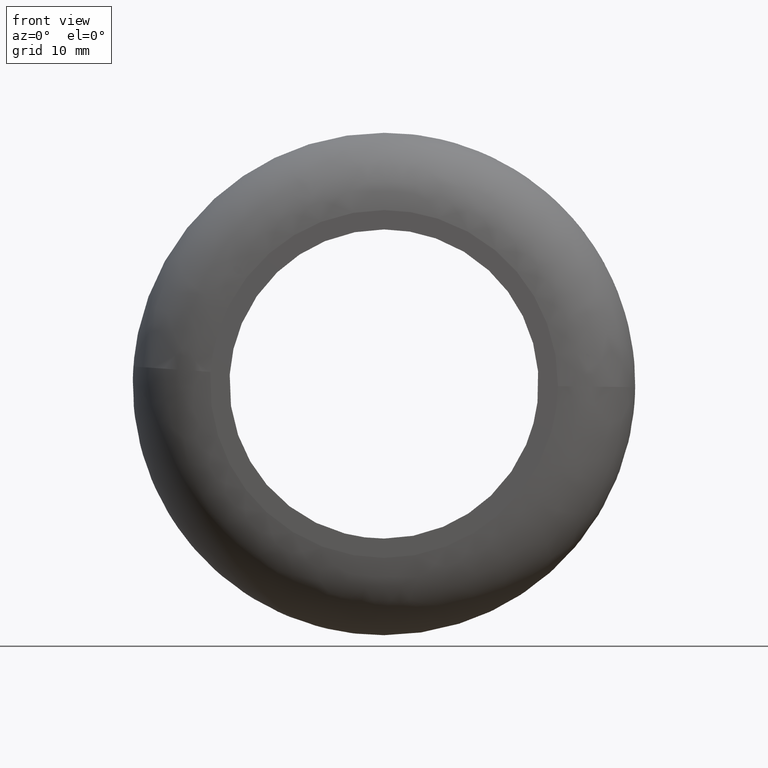
[diagram: clean part render]
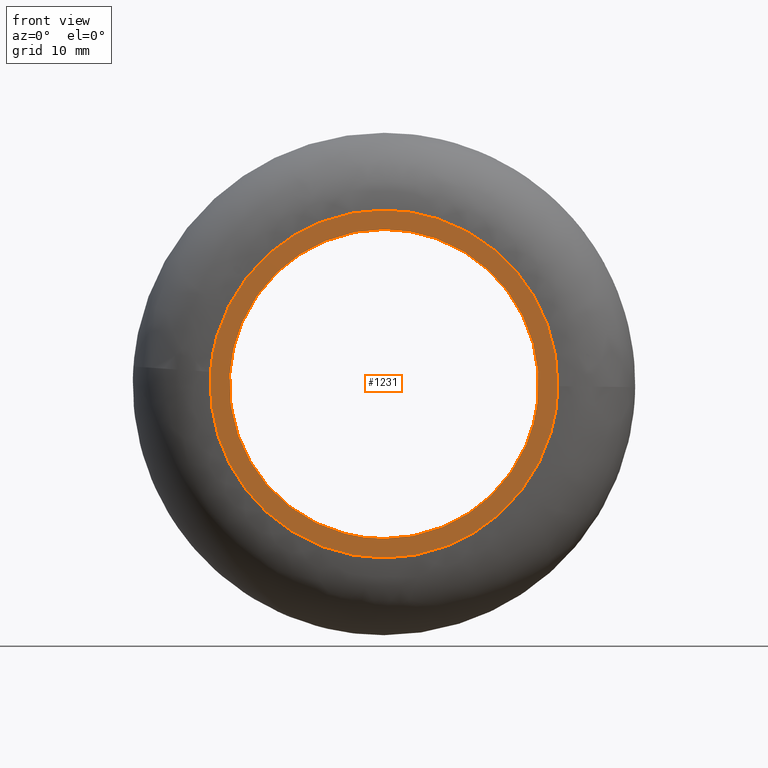
[diagram: same view with one face highlighted and labeled with its STEP entity id]
A machine part, front view. The second image highlights one B-rep face of the part: STEP entity #1231.
In plain terms, the highlighted face is a freeform B-spline surface patch.
Its self-contained STEP definition (entity closure, byte-faithful):
#703=CARTESIAN_POINT('',(15.888154860658560,-2.434933E-015,-1.888527236580032));
#704=VERTEX_POINT('',#703);
#710=CARTESIAN_POINT('',(0.0,-2.939055E-015,16.0));
#711=VERTEX_POINT('',#710);
#712=CARTESIAN_POINT('',(15.888154860658563,-2.434933E-015,-1.888527236580032));
#713=CARTESIAN_POINT('',(15.999999999999996,-2.939055E-015,-0.947575547012040));
#714=CARTESIAN_POINT('',(16.0,-2.939055E-015,-3.673819E-016));
#715=CARTESIAN_POINT('',(15.999999999999998,-2.939055E-015,15.999999999999998));
#716=CARTESIAN_POINT('',(0.0,-2.939055E-015,16.0));
#724=(BOUNDED_CURVE()B_SPLINE_CURVE(2,(#712,#713,#714,#715,#716),.UNSPECIFIED.,.F.,.U.)B_SPLINE_CURVE_WITH_KNOTS((3,2,3),(0.229562691766117,0.250000000000000,0.500000000000000),.UNSPECIFIED.)CURVE()GEOMETRIC_REPRESENTATION_ITEM()RATIONAL_B_SPLINE_CURVE((0.956027181968191,0.976056204029982,1.0,0.707106781186548,1.0))REPRESENTATION_ITEM(''));
#725=EDGE_CURVE('',#704,#711,#724,.T.);
#727=CARTESIAN_POINT('',(-15.970157002924900,-2.468728E-015,0.976772901914701));
#728=VERTEX_POINT('',#727);
#729=CARTESIAN_POINT('',(0.0,-2.939055E-015,16.0));
#730=CARTESIAN_POINT('',(-15.051300593058317,-2.939055E-015,16.000000000000004));
#731=CARTESIAN_POINT('',(-15.970157002924894,-2.468728E-015,0.976772901914701));
#739=(BOUNDED_CURVE()B_SPLINE_CURVE(2,(#729,#730,#731),.UNSPECIFIED.,.F.,.U.)B_SPLINE_CURVE_WITH_KNOTS((3,3),(0.500000000000000,0.739333002549055),.UNSPECIFIED.)CURVE()GEOMETRIC_REPRESENTATION_ITEM()RATIONAL_B_SPLINE_CURVE((1.0,0.719603946060476,0.976072128058977))REPRESENTATION_ITEM(''));
#740=EDGE_CURVE('',#711,#728,#739,.T.);
#814=CARTESIAN_POINT('',(0.0,-2.939055E-015,-16.0));
#815=VERTEX_POINT('',#814);
#816=CARTESIAN_POINT('',(-15.970157002924894,-2.468728E-015,0.976772901914701));
#817=CARTESIAN_POINT('',(-15.999999999999998,-2.939055E-015,0.488842342225769));
#818=CARTESIAN_POINT('',(-16.0,-2.939055E-015,-3.673819E-016));
#819=CARTESIAN_POINT('',(-15.999999999999998,-2.939055E-015,-15.999999999999998));
#820=CARTESIAN_POINT('',(0.0,-2.939055E-015,-16.0));
#828=(BOUNDED_CURVE()B_SPLINE_CURVE(2,(#816,#817,#818,#819,#820),.UNSPECIFIED.,.F.,.U.)B_SPLINE_CURVE_WITH_KNOTS((3,2,3),(0.739333002549055,0.750000000000000,1.0),.UNSPECIFIED.)CURVE()GEOMETRIC_REPRESENTATION_ITEM()RATIONAL_B_SPLINE_CURVE((0.976072128058977,0.987502835126071,1.0,0.707106781186548,1.0))REPRESENTATION_ITEM(''));
#829=EDGE_CURVE('',#728,#815,#828,.T.);
#831=CARTESIAN_POINT('',(0.0,-2.939055E-015,-16.0));
#832=CARTESIAN_POINT('',(14.210810896209209,-2.939055E-015,-16.000000000000004));
#833=CARTESIAN_POINT('',(15.888154860658563,-2.434933E-015,-1.888527236580032));
#841=(BOUNDED_CURVE()B_SPLINE_CURVE(2,(#831,#832,#833),.UNSPECIFIED.,.F.,.U.)B_SPLINE_CURVE_WITH_KNOTS((3,3),(0.0,0.229562691766117),.UNSPECIFIED.)CURVE()GEOMETRIC_REPRESENTATION_ITEM()RATIONAL_B_SPLINE_CURVE((1.0,0.731050577156566,0.956027181968191))REPRESENTATION_ITEM(''));
#842=EDGE_CURVE('',#815,#704,#841,.T.);
#881=CARTESIAN_POINT('',(17.998578795741860,5.026045E-017,-0.226188717905229));
#882=VERTEX_POINT('',#881);
#896=CARTESIAN_POINT('',(0.0,-2.664535E-015,-18.0));
#897=VERTEX_POINT('',#896);
#898=CARTESIAN_POINT('',(0.0,-2.664535E-015,-18.0));
#899=CARTESIAN_POINT('',(17.775214738323836,-2.664535E-015,-18.0));
#900=CARTESIAN_POINT('',(17.998578795741853,5.026045E-017,-0.226188717905229));
#908=(BOUNDED_CURVE()B_SPLINE_CURVE(2,(#898,#899,#900),.UNSPECIFIED.,.F.,.U.)B_SPLINE_CURVE_WITH_KNOTS((3,3),(0.0,0.247784295921651),.UNSPECIFIED.)CURVE()GEOMETRIC_REPRESENTATION_ITEM()RATIONAL_B_SPLINE_CURVE((1.0,0.709702639984331,0.994854295643834))REPRESENTATION_ITEM(''));
#909=EDGE_CURVE('',#897,#882,#908,.T.);
#911=CARTESIAN_POINT('',(-17.956182129380078,2.106516E-016,1.255198528417917));
#912=VERTEX_POINT('',#911);
#913=CARTESIAN_POINT('',(-17.956182129380082,2.106516E-016,1.255198528417917));
#914=CARTESIAN_POINT('',(-18.0,-2.664535E-015,0.628364085787079));
#915=CARTESIAN_POINT('',(-18.0,-2.664535E-015,-3.673819E-016));
#916=CARTESIAN_POINT('',(-18.000000000000007,-2.664535E-015,-18.000000000000007));
#917=CARTESIAN_POINT('',(0.0,-2.664535E-015,-18.0));
#925=(BOUNDED_CURVE()B_SPLINE_CURVE(2,(#913,#914,#915,#916,#917),.UNSPECIFIED.,.F.,.U.)B_SPLINE_CURVE_WITH_KNOTS((3,2,3),(0.737833686534328,0.750000000000000,1.0),.UNSPECIFIED.)CURVE()GEOMETRIC_REPRESENTATION_ITEM()RATIONAL_B_SPLINE_CURVE((0.972879876385360,0.985746277151783,1.0,0.707106781186547,1.0))REPRESENTATION_ITEM(''));
#926=EDGE_CURVE('',#912,#897,#925,.T.);
#969=CARTESIAN_POINT('',(0.0,-2.664535E-015,18.0));
#970=VERTEX_POINT('',#969);
#971=CARTESIAN_POINT('',(0.0,-2.664535E-015,18.0));
#972=CARTESIAN_POINT('',(-16.785663250720226,-2.664535E-015,18.000000000000007));
#973=CARTESIAN_POINT('',(-17.956182129380082,2.106516E-016,1.255198528417917));
#981=(BOUNDED_CURVE()B_SPLINE_CURVE(2,(#971,#972,#973),.UNSPECIFIED.,.F.,.U.)B_SPLINE_CURVE_WITH_KNOTS((3,3),(0.500000000000000,0.737833686534328),.UNSPECIFIED.)CURVE()GEOMETRIC_REPRESENTATION_ITEM()RATIONAL_B_SPLINE_CURVE((1.0,0.721360504034764,0.972879876385360))REPRESENTATION_ITEM(''));
#982=EDGE_CURVE('',#970,#912,#981,.T.);
#984=CARTESIAN_POINT('',(17.998578795741853,5.026045E-017,-0.226188717905229));
#985=CARTESIAN_POINT('',(17.999999999999996,-2.664535E-015,-0.113098823857978));
#986=CARTESIAN_POINT('',(18.0,-2.664535E-015,-3.673819E-016));
#987=CARTESIAN_POINT('',(18.000000000000007,-2.664535E-015,18.000000000000007));
#988=CARTESIAN_POINT('',(0.0,-2.664535E-015,18.0));
#996=(BOUNDED_CURVE()B_SPLINE_CURVE(2,(#984,#985,#986,#987,#988),.UNSPECIFIED.,.F.,.U.)B_SPLINE_CURVE_WITH_KNOTS((3,2,3),(0.247784295921651,0.250000000000000,0.500000000000000),.UNSPECIFIED.)CURVE()GEOMETRIC_REPRESENTATION_ITEM()RATIONAL_B_SPLINE_CURVE((0.994854295643834,0.997404141202217,1.0,0.707106781186547,1.0))REPRESENTATION_ITEM(''));
#997=EDGE_CURVE('',#882,#970,#996,.T.);
#1214=CARTESIAN_POINT('',(-19.795974385936070,-2.801795E-015,-19.798199930225010));
#1215=CARTESIAN_POINT('',(-19.795974385936070,-2.801795E-015,19.798200895820258));
#1216=CARTESIAN_POINT('',(19.796606202193530,-2.801795E-015,-19.798199930225010));
#1217=CARTESIAN_POINT('',(19.796606202193530,-2.801795E-015,19.798200895820258));
#1218=B_SPLINE_SURFACE_WITH_KNOTS('',1,1,((#1214,#1216),(#1215,#1217)),.UNSPECIFIED.,.F.,.F.,.U.,(2,2),(2,2),(0.0,39.596400826045269),(0.0,39.592580588129607),.UNSPECIFIED.);
#1219=ORIENTED_EDGE('',*,*,#997,.T.);
#1220=ORIENTED_EDGE('',*,*,#982,.T.);
#1221=ORIENTED_EDGE('',*,*,#926,.T.);
#1222=ORIENTED_EDGE('',*,*,#909,.T.);
#1223=EDGE_LOOP('',(#1219,#1220,#1221,#1222));
#1224=FACE_OUTER_BOUND('',#1223,.T.);
#1225=ORIENTED_EDGE('',*,*,#740,.F.);
#1226=ORIENTED_EDGE('',*,*,#725,.F.);
#1227=ORIENTED_EDGE('',*,*,#842,.F.);
#1228=ORIENTED_EDGE('',*,*,#829,.F.);
#1229=EDGE_LOOP('',(#1225,#1226,#1227,#1228));
#1230=FACE_BOUND('',#1229,.T.);
#1231=ADVANCED_FACE('',(#1224,#1230),#1218,.F.);